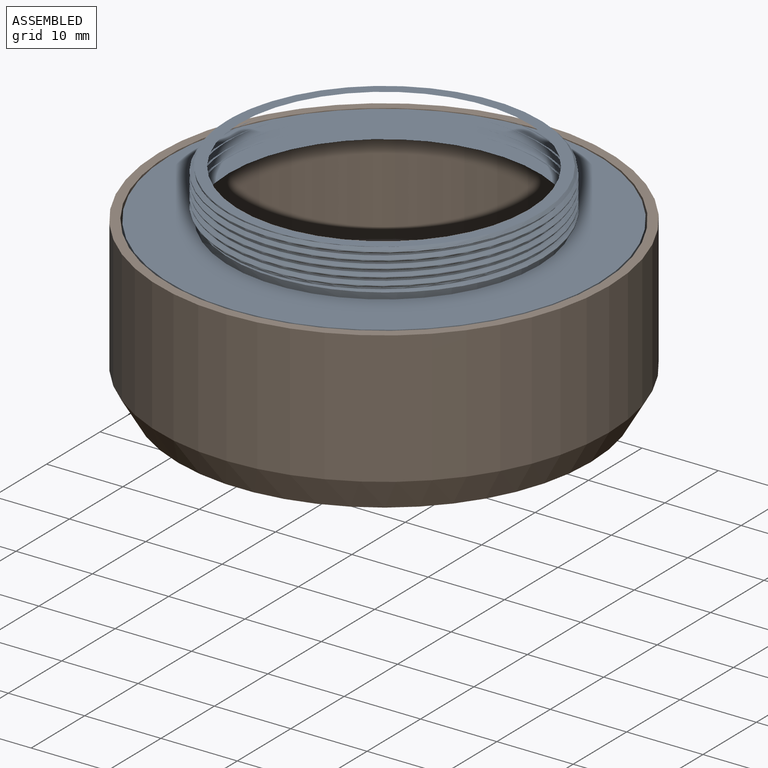
[diagram: assembled view]
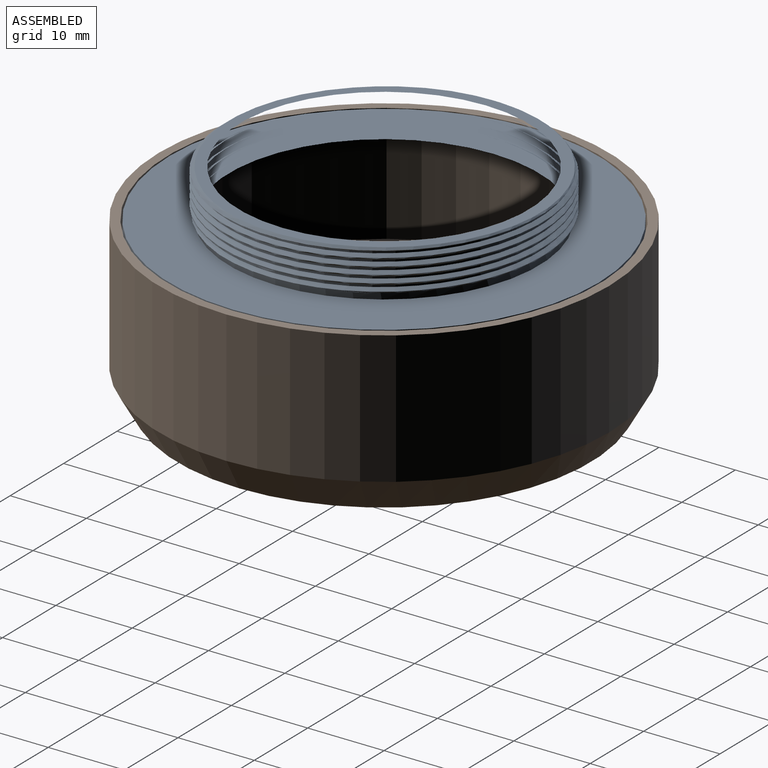
[diagram: assembled view, second angle]
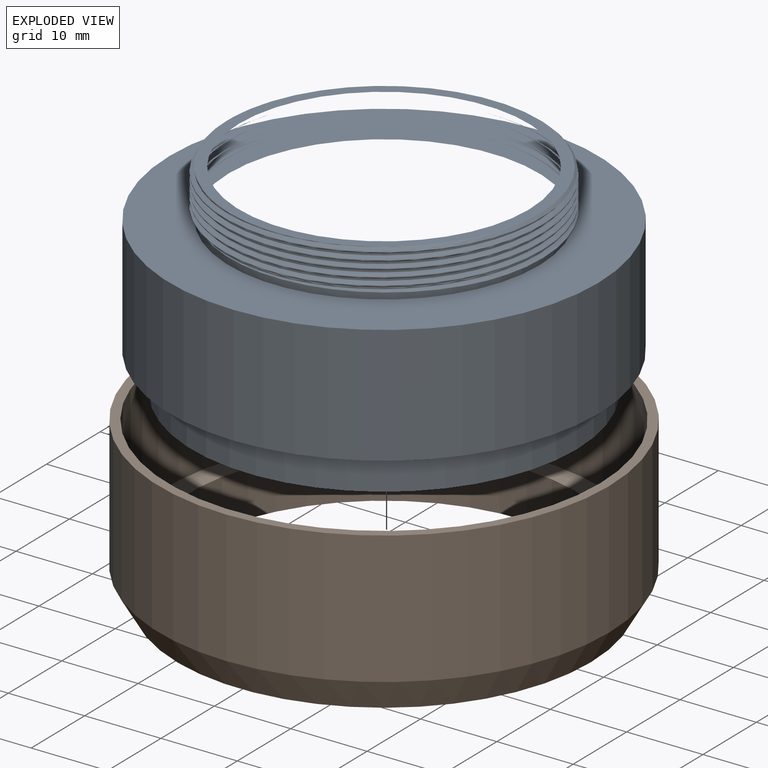
[diagram: exploded view]
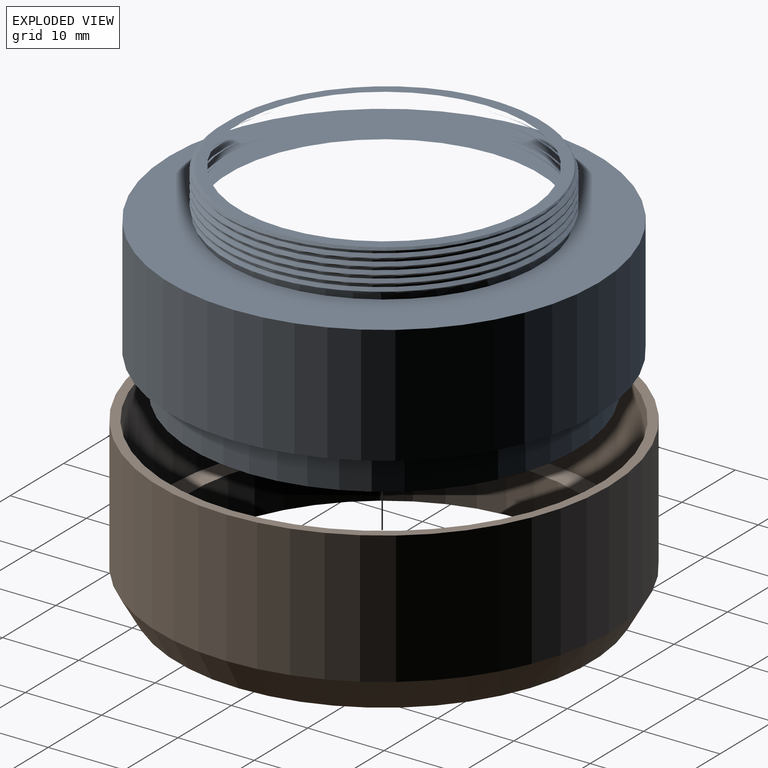
[diagram: exploded view, second angle]
ASSEMBLY  parts=2 mates=2
PART A: 20 faces, bbox 56.8x56.8x28 mm
  f0: cylinder r=20.35mm len=40.7mm, axis (0,0,1), area 143.9mm2, adj f1,f6,f16,f17,f18
  f1: cylinder r=20.35mm len=40.7mm, axis (0,0,1), area 32mm2, adj f0,f2,f17,f18
  f2: cylinder r=20.35mm len=40.7mm, axis (0,0,1), area 32mm2, adj f1,f3,f17,f18
  f3: cylinder r=20.35mm len=40.7mm, axis (0,0,1), area 32mm2, adj f2,f4,f17,f18
  f4: cylinder r=20.35mm len=40.7mm, axis (0,0,1), area 32mm2, adj f3,f5,f17,f18
  f5: cylinder r=20.35mm len=40.7mm, axis (0,0,1), area 24mm2, adj f4,f8,f17,f18
  f6: plane 41.71x35.98mm, normal (0,0,-1), area 30.6mm2, adj f0,f17,f18,f19
  f7: cone r=21mm half-angle=45deg, axis (0,0,-1), area 25.4mm2, adj f8,f17,f18,f19
  f8: plane 41.04x40.89mm, normal (0,0,1), area 179.7mm2, adj f5,f7,f9,f17,f18
  f9: cone r=13.9mm half-angle=12.1deg, axis (0,0,1), area 2510.7mm2, adj f8,f10
  f10: plane 27.8x27.8mm, normal (0,0,1), area 104.3mm2, adj f9,f11
  f11: cylinder r=12.65mm len=25.3mm, axis (0,0,1), area 238.4mm2, adj f10,f12
  f12: plane 50.5x50.5mm, normal (0,0,-1), area 1500.2mm2, adj f11,f13
  f13: cylinder r=25.25mm len=50.5mm, axis (0,0,1), area 793.3mm2, adj f12,f14
  f14: plane 56.2x56.2mm, normal (0,0,-1), area 477.7mm2, adj f13,f15
  f15: cylinder r=28.1mm len=56.2mm, axis (0,0,1), area 2736.6mm2, adj f14,f16
  f16: plane 56.2x56.2mm, normal (0,0,1), area 1179.6mm2, adj f0,f15
  f17: bspline ~48.25x41.78mm, area 284.4mm2, adj f0,f1,f2,f3,f4,f5,f6,f7
  f18: bspline ~41.75x41.72mm, area 421.3mm2, adj f0,f1,f2,f3,f4,f5,f6,f7
  f19: cylinder r=20.89mm len=41.78mm, axis (0,0,1), area 81.3mm2, adj f6,f7,f17,f18
PART B: 7 faces, bbox 59x59x21.5 mm
  f0: cylinder r=29.5mm len=59mm, axis (0,0,1), area 3214.6mm2, adj f1,f6
  f1: plane 59x59mm, normal (0,0,1), area 217.9mm2, adj f0,f2
  f2: cylinder r=28.3mm len=56.6mm, axis (0,0,1), area 2756.1mm2, adj f1,f3
  f3: plane 56.6x56.6mm, normal (0,0,1), area 473.2mm2, adj f2,f4
  f4: cylinder r=25.5mm len=51mm, axis (0,0,1), area 961.3mm2, adj f3,f5
  f5: plane 54.2x54.2mm, normal (0,0,-1), area 264.4mm2, adj f4,f6
  f6: cone r=27.1mm half-angle=30deg, axis (0,0,1), area 853.5mm2, adj f0,f5
PLACE A t=(1.29,-10.11,-19.7)mm
PLACE B t=(1.29,-10.11,-25.33)mm
MATE cylindrical B.f0 <-> A.f0  axis (0,0,1) through (1.29,-10.11,-46.95)mm
MATE planar A.f0 <-> B.f0  axis (0,0,-1) through (1.29,-10.11,-54.7)mm
